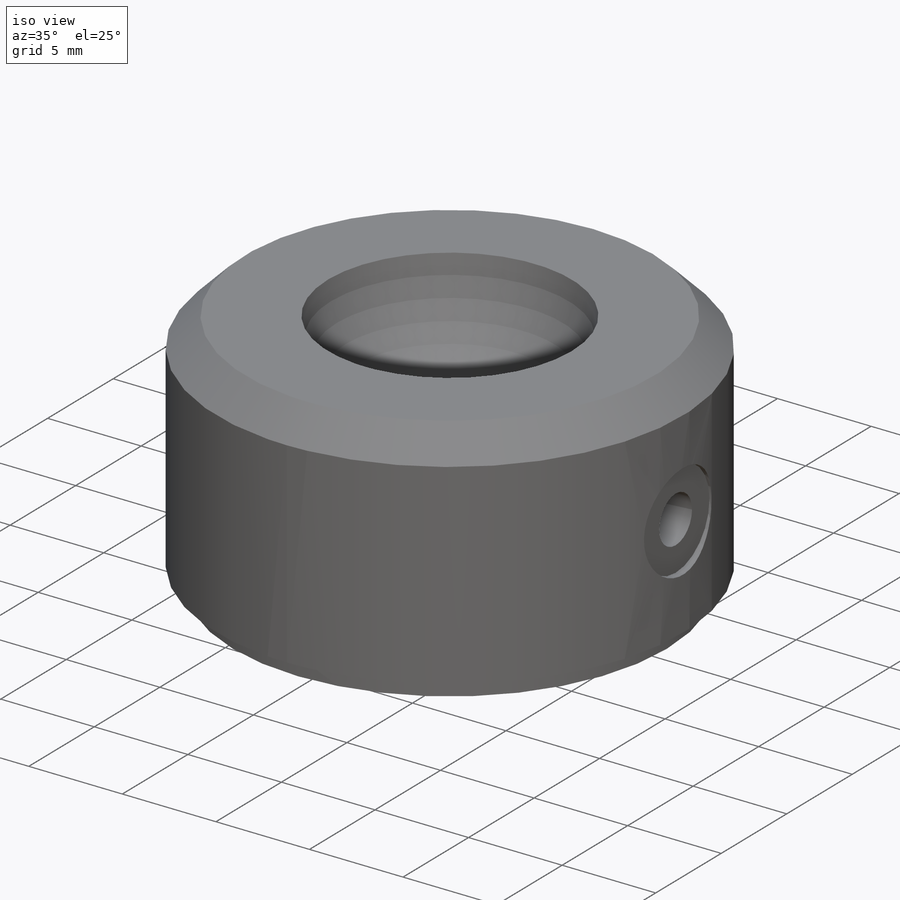
[diagram: iso view]
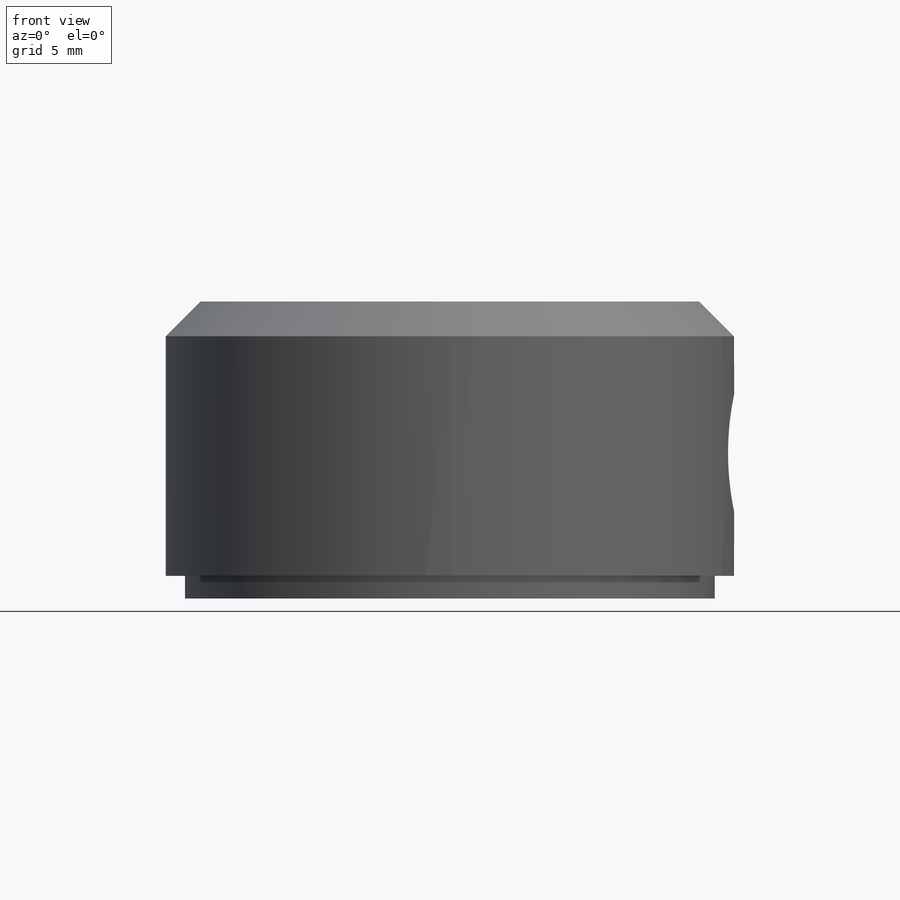
[diagram: front view]
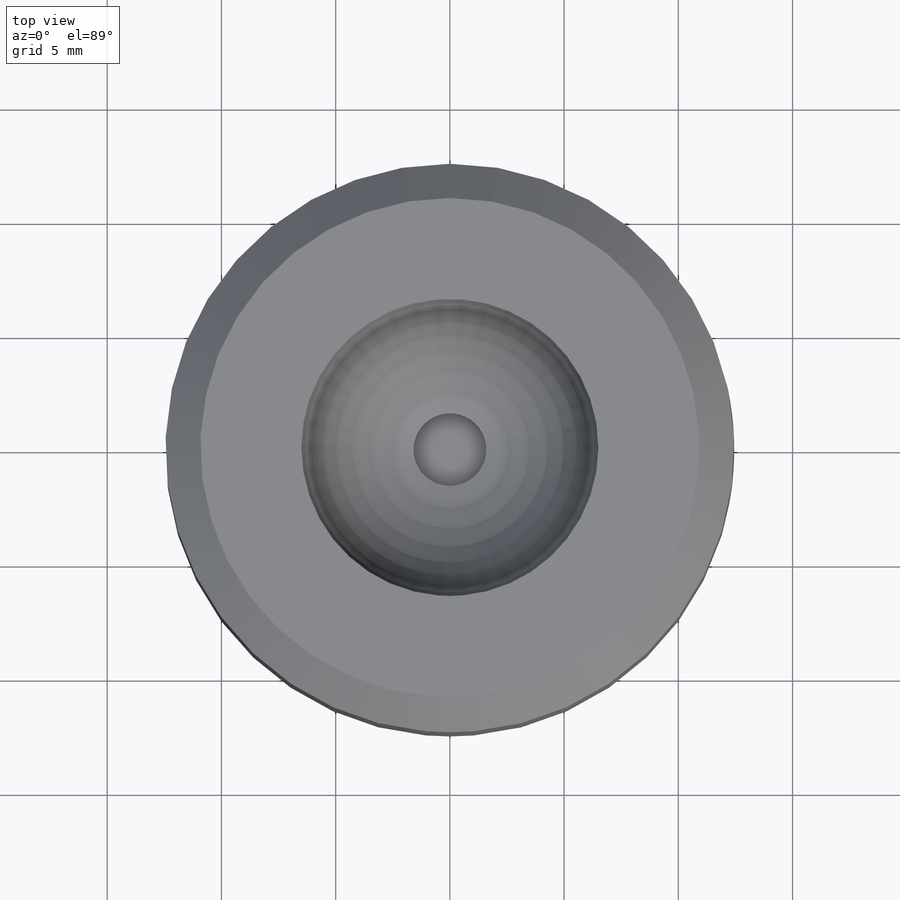
[diagram: top view]
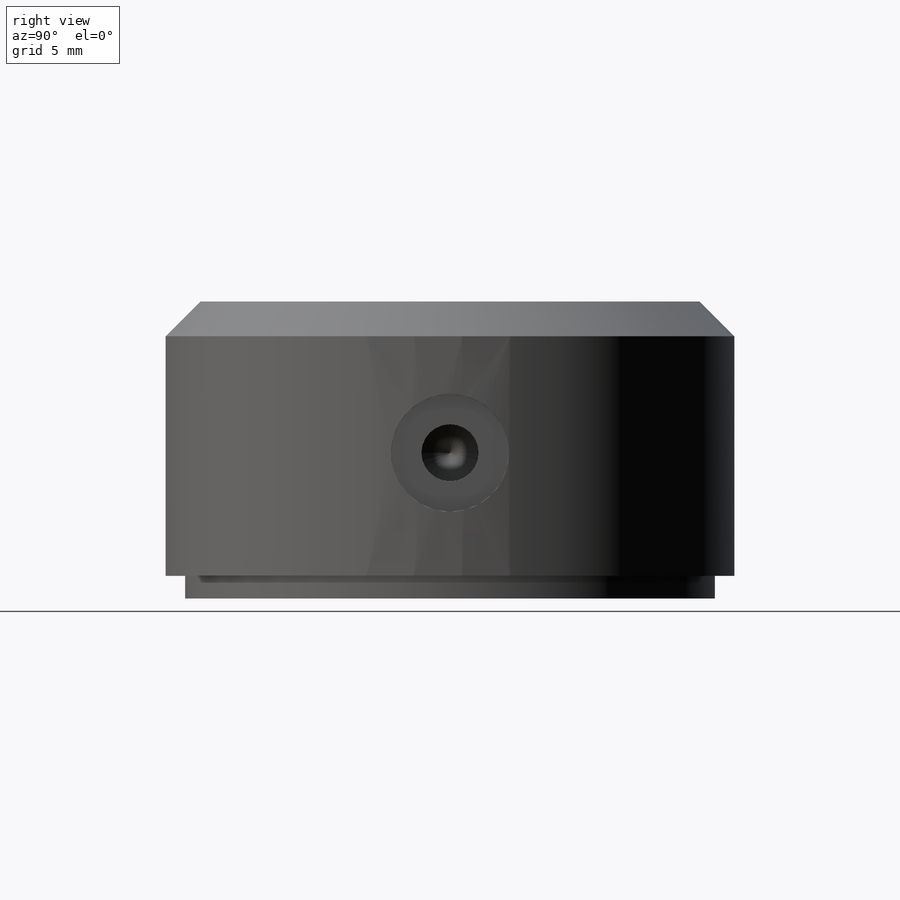
[diagram: right view]
SOLIDWORKS PART (.sldprt)
format: sldprt  version: not decoded by parser v0  size: 223,744 bytes
history: native  units: mm
features: sketch x8, extrude x2, hole x2, material x1, chamfer x1, cut_extrude x1, cut_revolve x1, plane x1, thread x1 (+15 scaffold rows collapsed)
feature tree (33):
  scaffold x15  (default folders/planes/origin — collapsed)
  material  "Material <not specified>"
  sketch  "Sketch1"  dims[D1=24.892mm]
  extrude  "Extrude1"  Depth=12.0142mm
  chamfer  "Chamfer1"  Distance=1.524mm Angle=45deg
  sketch  "Sketch2"  dims[D1=23.1902mm]
  extrude  "Extrude2"  Depth=0.99076mm
  sketch  "Sketch3"  dims[D1=3.175mm]
  cut_extrude  "Extrude3"  Depth=6.3754mm
  sketch  "Sketch4"  dims[D1=6.52mm D2=0.508mm]
  cut_revolve  "Cut-Revolve1"  Angle=360deg
  plane  "Plane1"  Offset=12.446mm
  hole  "5/16 (0.3125) Diameter Hole2"  Diameter=5.1562mm Depth=0.381mm
  sketch  "Sketch7"  dims[D1=6.6294mm]
  sketch  "Sketch6"  dims[hole-wizard template sketch: 46 standard entries collapsed; hole parameters kept: c15.Hole Dia.=5.1562mm c15.Hole Depth=0.381mm c15.D3=~14.816244mm c15.Drill Angle=180.0deg]
  hole  "M3x0.5 Tapped Hole1"  Diameter=2.5mm Depth=5.3086mm
  sketch  "Sketch9"
  sketch  "Sketch8"  dims[hole-wizard template sketch: 47 standard entries collapsed; hole parameters kept: c15.Tap Drill Depth=5.3086mm c15.D3=~14.816244mm c15.Drill Angle=118.0deg]
  thread  "Hole Thread1"  Diameter=3.81mm  [1 undecoded]
decode coverage: 15 of 16 modeling features carry decoded parameters
note: ~ marks probable driven/reference dimensions
note: 1 parameter value undecoded
note: suppression state not decoded; provenance and decode notes live in map.json
